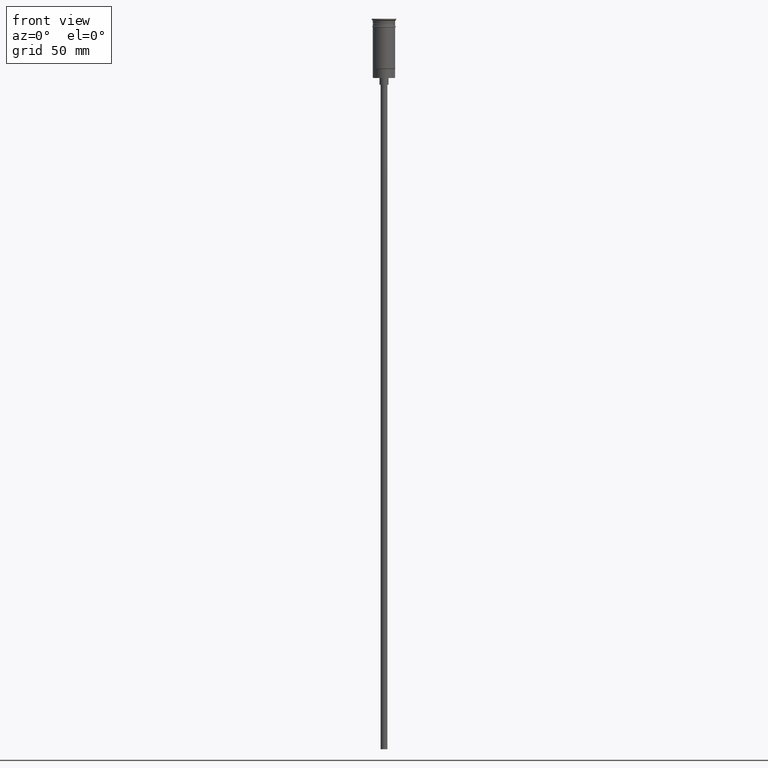
[diagram: clean part render]
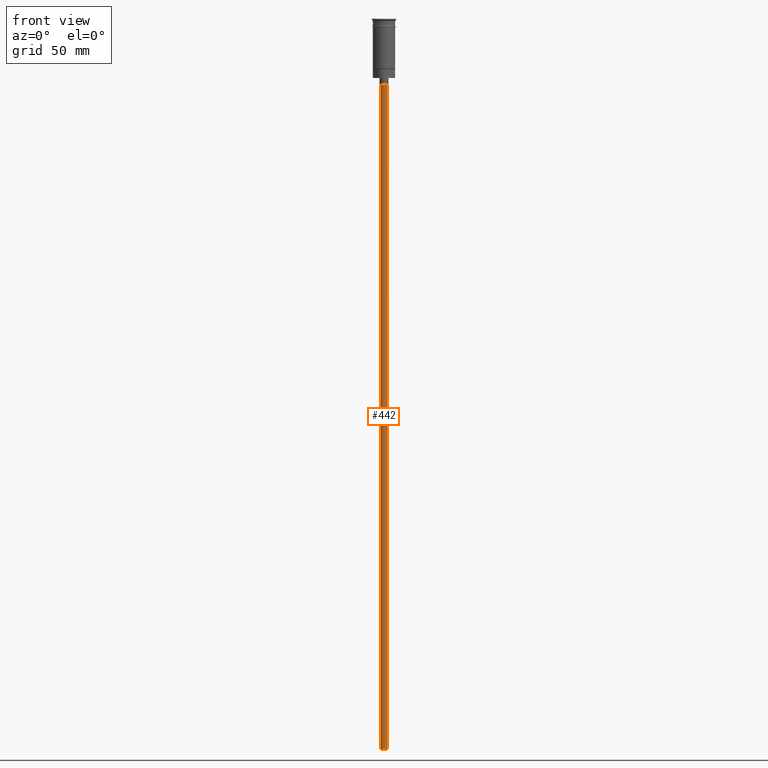
[diagram: same view with one face highlighted and labeled with its STEP entity id]
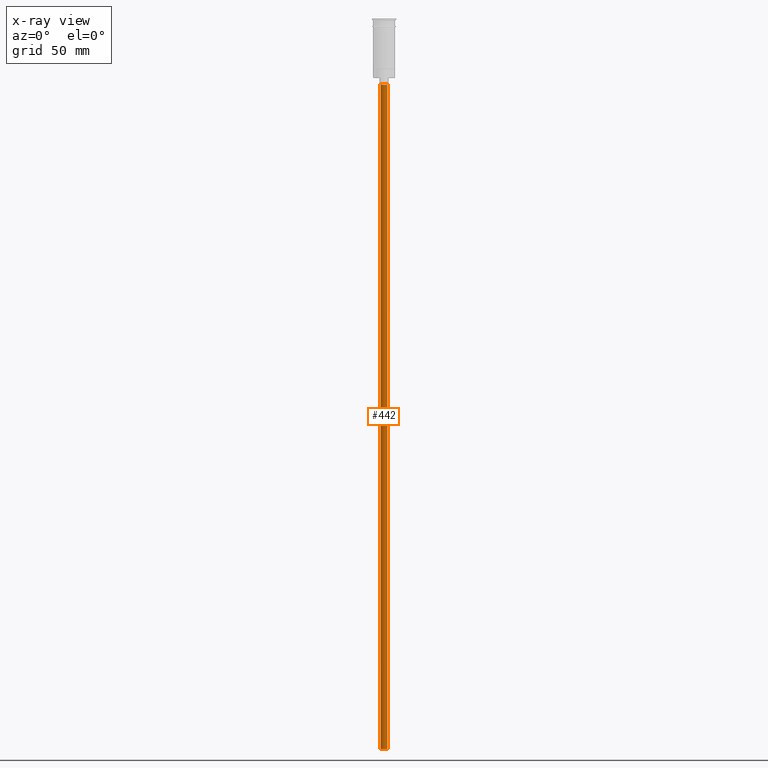
[diagram: x-ray of the same camera — body ghosted, the highlighted face saturated]
A machine part, front view. The second image highlights one B-rep face of the part: STEP entity #442.
The next image is the same camera in x-ray: the body ghosted, the highlighted face saturated — about 0% of this face is hidden behind the body in this view.
In plain terms, the highlighted cylindrical surface (edge-blend (fillet) strip) has radius 1.5 mm, axis along (-0, -0, 1).
Its self-contained STEP definition (entity closure, byte-faithful):
#55 = CYLINDRICAL_SURFACE ( 'NONE', #1354, 1.500000000000000222 ) ;
#62 = DIRECTION ( 'NONE',  ( 1.000000000000000000, 0.000000000000000000, 0.000000000000000000 ) ) ;
#75 = FACE_OUTER_BOUND ( 'NONE', #539, .T. ) ;
#113 = VERTEX_POINT ( 'NONE', #858 ) ;
#224 = AXIS2_PLACEMENT_3D ( 'NONE', #362, #857, #494 ) ;
#242 = ORIENTED_EDGE ( 'NONE', *, *, #704, .F. ) ;
#275 = DIRECTION ( 'NONE',  ( -0.000000000000000000, -0.000000000000000000, 1.000000000000000000 ) ) ;
#290 = ORIENTED_EDGE ( 'NONE', *, *, #1263, .F. ) ;
#359 = VERTEX_POINT ( 'NONE', #1237 ) ;
#362 = CARTESIAN_POINT ( 'NONE',  ( 0.000000000000000000, 0.000000000000000000, -29.50000000000000000 ) ) ;
#417 = CARTESIAN_POINT ( 'NONE',  ( 1.500000000000000222, 0.000000000000000000, -326.5000000000000000 ) ) ;
#442 = ADVANCED_FACE ( 'NONE', ( #75 ), #55, .T. ) ;
#452 = VECTOR ( 'NONE', #1123, 1000.000000000000000 ) ;
#494 = DIRECTION ( 'NONE',  ( -1.000000000000000000, 0.000000000000000000, 0.000000000000000000 ) ) ;
#539 = EDGE_LOOP ( 'NONE', ( #242, #290, #903, #1503 ) ) ;
#550 = CARTESIAN_POINT ( 'NONE',  ( 0.000000000000000000, 0.000000000000000000, -326.5000000000000000 ) ) ;
#704 = EDGE_CURVE ( 'NONE', #1133, #359, #733, .T. ) ;
#733 = LINE ( 'NONE', #752, #1149 ) ;
#752 = CARTESIAN_POINT ( 'NONE',  ( -1.500000000000000222, 1.836970198721030181E-16, -326.5000000000000000 ) ) ;
#857 = DIRECTION ( 'NONE',  ( 0.000000000000000000, 0.000000000000000000, -1.000000000000000000 ) ) ;
#858 = CARTESIAN_POINT ( 'NONE',  ( 1.500000000000000222, 0.000000000000000000, -29.50000000000000000 ) ) ;
#881 = CARTESIAN_POINT ( 'NONE',  ( 0.000000000000000000, 0.000000000000000000, -326.5000000000000000 ) ) ;
#903 = ORIENTED_EDGE ( 'NONE', *, *, #1477, .T. ) ;
#906 = EDGE_CURVE ( 'NONE', #113, #359, #991, .T. ) ;
#921 = AXIS2_PLACEMENT_3D ( 'NONE', #881, #1250, #1442 ) ;
#922 = CARTESIAN_POINT ( 'NONE',  ( 1.500000000000000222, 0.000000000000000000, -326.5000000000000000 ) ) ;
#991 = CIRCLE ( 'NONE', #224, 1.500000000000000222 ) ;
#1123 = DIRECTION ( 'NONE',  ( -0.000000000000000000, -0.000000000000000000, 1.000000000000000000 ) ) ;
#1127 = VERTEX_POINT ( 'NONE', #922 ) ;
#1133 = VERTEX_POINT ( 'NONE', #1419 ) ;
#1149 = VECTOR ( 'NONE', #275, 1000.000000000000000 ) ;
#1167 = DIRECTION ( 'NONE',  ( -0.000000000000000000, -0.000000000000000000, 1.000000000000000000 ) ) ;
#1218 = LINE ( 'NONE', #417, #452 ) ;
#1237 = CARTESIAN_POINT ( 'NONE',  ( -1.500000000000000222, 1.836970198721030181E-16, -29.50000000000000000 ) ) ;
#1250 = DIRECTION ( 'NONE',  ( 0.000000000000000000, 0.000000000000000000, -1.000000000000000000 ) ) ;
#1263 = EDGE_CURVE ( 'NONE', #1127, #1133, #1462, .T. ) ;
#1354 = AXIS2_PLACEMENT_3D ( 'NONE', #550, #1167, #62 ) ;
#1419 = CARTESIAN_POINT ( 'NONE',  ( -1.500000000000000222, 1.836970198721030181E-16, -326.5000000000000000 ) ) ;
#1442 = DIRECTION ( 'NONE',  ( -1.000000000000000000, 0.000000000000000000, 0.000000000000000000 ) ) ;
#1462 = CIRCLE ( 'NONE', #921, 1.500000000000000222 ) ;
#1477 = EDGE_CURVE ( 'NONE', #1127, #113, #1218, .T. ) ;
#1503 = ORIENTED_EDGE ( 'NONE', *, *, #906, .T. ) ;